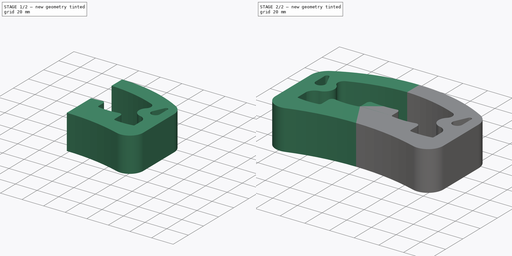
[diagram: build sequence overview — one tinted view per stage of 2, left to right]
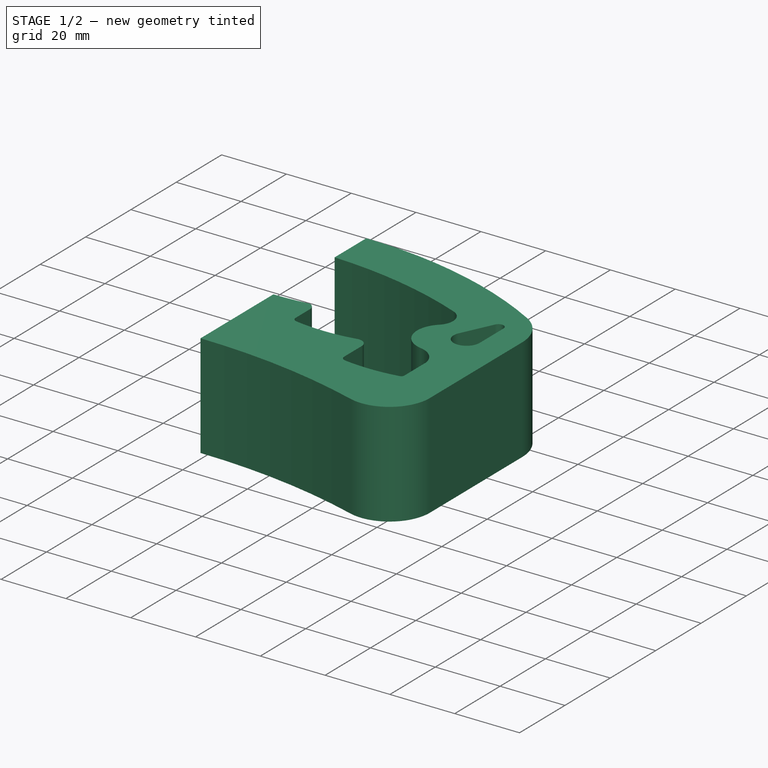
[diagram: stage 1 of 2 — iso view after this stage's code; geometry added in this stage tinted green]
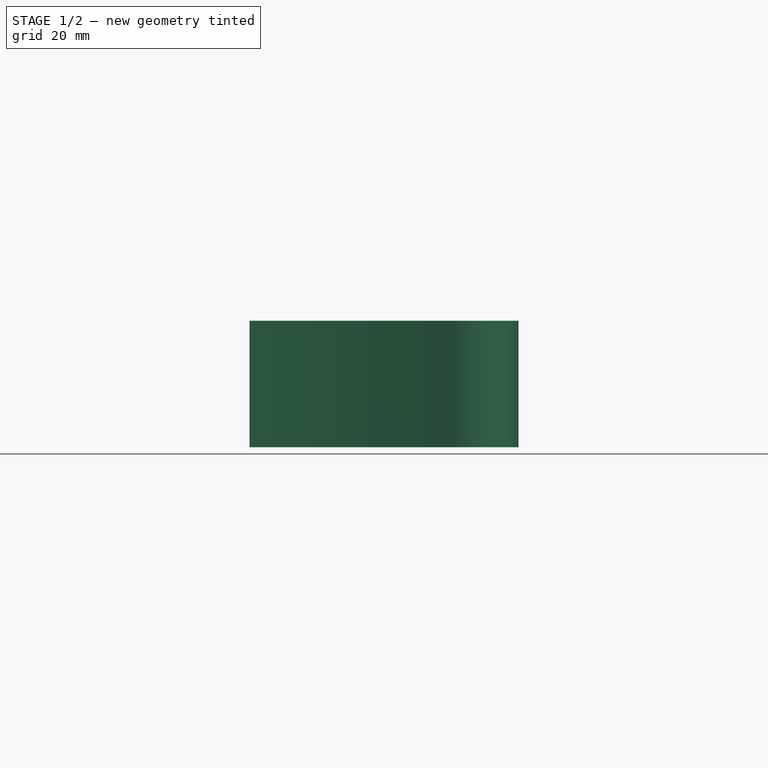
[diagram: stage 1 of 2 — front view after this stage's code; geometry added in this stage tinted green]
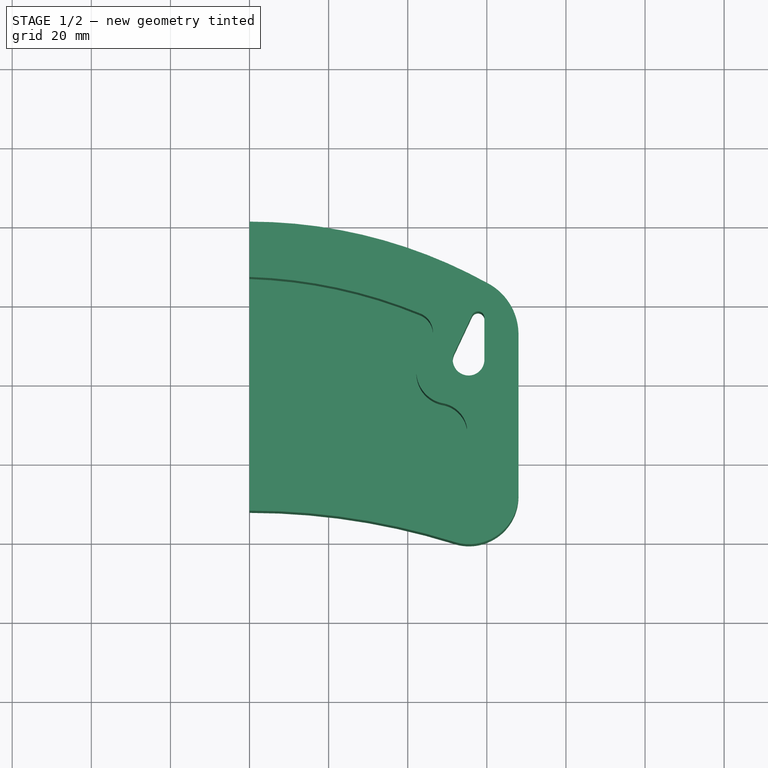
[diagram: stage 1 of 2 — top view after this stage's code; geometry added in this stage tinted green]
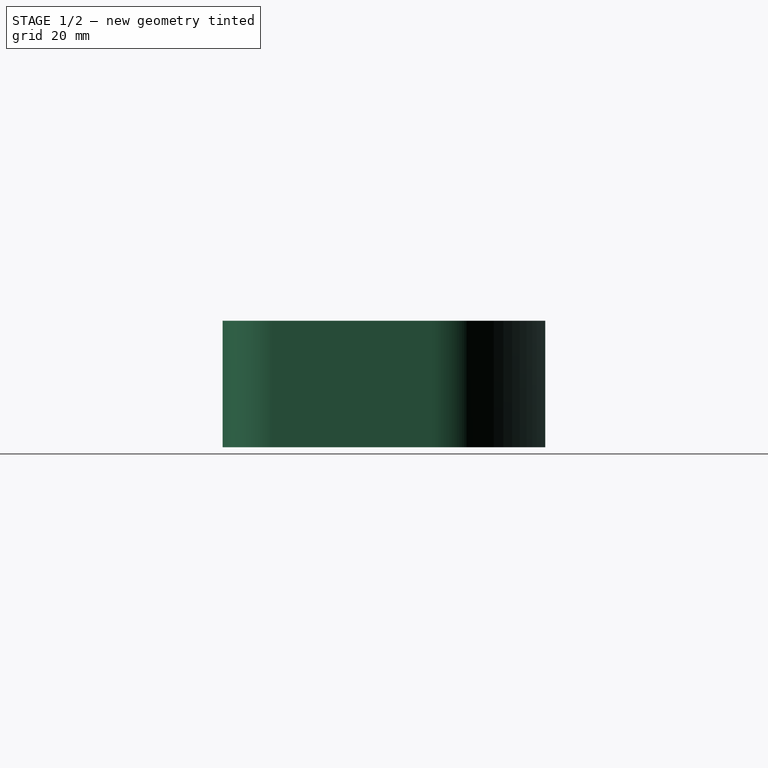
[diagram: stage 1 of 2 — right view after this stage's code; geometry added in this stage tinted green]
FCSTD DOCUMENT  (FreeCAD 1.0RUnknown)
Label: metacarpedge_v2
License: All rights reserved
LicenseURL: https://en.wikipedia.org/wiki/All_rights_reserved
objects: Sketcher::SketchObject×2, PartDesign::Pad×1, PartDesign::Pocket×1, PartDesign::Mirrored×1, PartDesign::Body×1
note: 13 computed .brp shape members not serialized (recipe doc carries the construction recipe); baked Part::Feature solids carry a one-line shape summary decoded from their .brp

FEATURE [Sketcher::SketchObject] Sketch
  ArcFitTolerance = 1e-06
  AttachmentSupport = -> [XY_Plane]
  FullyConstrained = false
  MakeInternals = false
  MapMode = 5
  sketch-geometry (12):
    g0: LineSegment StartX=68 StartY=11.9198 StartZ=0 EndX=68 EndY=52.4848 EndZ=0
    g1: ArcOfCircle CenterX=2.13e-14 CenterY=-165.714 CenterZ=0 NormalX=0 NormalY=0 NormalZ=1 AngleXU=0 Radius=173.617 StartAngle=1.26791 EndAngle=1.5708
    g2: ArcOfCircle CenterX=0 CenterY=-43.203 CenterZ=0 NormalX=0 NormalY=0 NormalZ=1 AngleXU=0 Radius=124.203 StartAngle=1.06214 EndAngle=1.5708
    g3: ArcOfCircle CenterX=55.5117 CenterY=11.9198 CenterZ=0 NormalX=0 NormalY=0 NormalZ=1 AngleXU=0 Radius=12.4883 StartAngle=4.4095 EndAngle=6.28319
    g4: ArcOfCircle CenterX=53.3545 CenterY=52.4848 CenterZ=0 NormalX=0 NormalY=0 NormalZ=1 AngleXU=0 Radius=14.6455 StartAngle=0 EndAngle=1.06214
    g5: LineSegment StartX=56.2781 StartY=57.3751 StartZ=0 EndX=51.7626 EndY=47.7982 EndZ=0
    g6: LineSegment StartX=59.3877 StartY=56.6788 StartZ=0 EndX=59.3877 EndY=46.0908 EndZ=0
    g7: ArcOfCircle CenterX=55.384 CenterY=46.0908 CenterZ=0 NormalX=0 NormalY=0 NormalZ=1 AngleXU=0 Radius=4.00371 StartAngle=2.701 EndAngle=6.28319
    g8: ArcOfCircle CenterX=57.7549 CenterY=56.6788 CenterZ=0 NormalX=0 NormalY=0 NormalZ=1 AngleXU=0 Radius=1.63275 StartAngle=-1.8e-15 EndAngle=2.701
    g9: LineSegment [constr] StartX=8.64254 StartY=81 StartZ=0 EndX=-10.5317 EndY=81 EndZ=0
    g10: LineSegment [constr] StartX=-3.87588 StartY=7.90337 StartZ=0 EndX=5.636 EndY=7.90337 EndZ=0
    g11: LineSegment StartX=7.6e-15 StartY=81 StartZ=0 EndX=7.6e-15 EndY=7.90337 EndZ=0
  constraints (21):
    c: Vertical(g0)
    c: PointOnObject(g1,g-1)
    c: PointOnObject(g1,g-2)
    c: Tangent(g4,g2) = -1.5708
    c: Tangent(g4,g0) = -1.5708
    c: Tangent(g3,g0) = -1.5708
    c: Tangent(g3,g1) = 1.5708
    c: Vertical(g6)
    c: Tangent(g8,g5) = -1.5708
    c: Tangent(g7,g5) = -1.5708
    c: Tangent(g7,g6) = 1.5708
    c: Tangent(g8,g6) = 1.5708
    c: Distance(g-2,g0) = 68
    c: DistanceY(g-1,g2) = 81
    c: Horizontal(g9)
    c: Tangent(g2,g9) = -1.5708
    c: Horizontal(g10)
    c: Tangent(g1,g10) = 1.5708
    c: Coincident(g11,g2)
    c: Coincident(g11,g1)
    c: Vertical(g11)
FEATURE [PartDesign::Pad] Pad
  Direction = (0,0,1)
  Length = 32
  Length2 = 10
  Profile = -> Sketch
  ReferenceAxis = -> Sketch [N_Axis]
  Suppressed = false
  Type = 0
FEATURE [Sketcher::SketchObject] Sketch001
  ArcFitTolerance = 1e-06
  AttachmentOffset = pos=(0,0,32) rot=(0,0,1;0rad)
  AttachmentSupport = -> [XY_Plane]
  ExternalGeometry = -> [Sketch]
  FullyConstrained = false
  MakeInternals = false
  MapMode = 5
  Placement = pos=(0,0,32) rot=(0,0,1;0rad)
  expr: .AttachmentOffset.Base.z = Pad.Length
  sketch-geometry (18):
    g0: ArcOfCircle CenterX=-3.96986 CenterY=-57.1396 CenterZ=0 NormalX=0 NormalY=0 NormalZ=1 AngleXU=0 Radius=124.203 StartAngle=1.18156 EndAngle=1.53883
    g1: LineSegment [constr] StartX=-8.37039 StartY=67.0635 StartZ=0 EndX=9.31481 EndY=67.0635 EndZ=0
    g2: ArcOfCircle CenterX=22.8152 CenterY=80.8834 CenterZ=0 NormalX=0 NormalY=0 NormalZ=1 AngleXU=0 Radius=51.5226 StartAngle=4.54279 EndAngle=4.91138
    g3: ArcOfCircle CenterX=45.0899 CenterY=69.7222 CenterZ=0 NormalX=0 NormalY=0 NormalZ=1 AngleXU=0 Radius=52.2566 StartAngle=4.56925 EndAngle=4.88876
    g4: ArcOfCircle CenterX=0 CenterY=118.096 CenterZ=0 NormalX=0 NormalY=0 NormalZ=1 AngleXU=0 Radius=78.0962 StartAngle=4.71239 EndAngle=4.84983
    g5: LineSegment StartX=12.6669 StartY=31.822 StartZ=0 EndX=12.6669 EndY=37.9697 EndZ=0
    g6: ArcOfCircle CenterX=9.73758 CenterY=37.9697 CenterZ=0 NormalX=0 NormalY=0 NormalZ=1 AngleXU=0 Radius=2.92934 StartAngle=-9e-16 EndAngle=1.23603
    g7: LineSegment StartX=36.0475 StartY=19.8334 StartZ=0 EndX=36.0475 EndY=27.4505 EndZ=0
    g8: ArcOfCircle CenterX=33.1182 CenterY=27.4505 CenterZ=0 NormalX=0 NormalY=0 NormalZ=1 AngleXU=0 Radius=2.92934 StartAngle=0 EndAngle=1.61116
    g9: LineSegment [constr] StartX=-4.82226 StartY=40 StartZ=0 EndX=3.66042 EndY=40 EndZ=0
    g10: ArcOfCircle CenterX=50.4089 CenterY=43.1664 CenterZ=0 NormalX=0 NormalY=0 NormalZ=1 AngleXU=0 Radius=8.2383 StartAngle=2.32657 EndAngle=4.52888
    g11: ArcOfCircle CenterX=41.1856 CenterY=52.9531 CenterZ=0 NormalX=0 NormalY=0 NormalZ=1 AngleXU=0 Radius=5.20974 StartAngle=5.46816 EndAngle=7.46475
    g12: ArcOfCircle CenterX=47.5222 CenterY=27.6124 CenterZ=0 NormalX=0 NormalY=0 NormalZ=1 AngleXU=0 Radius=7.58128 StartAngle=0.166833 EndAngle=1.38729
    g13: LineSegment StartX=54.9982 StartY=28.8713 StartZ=0 EndX=54.9982 EndY=19.159 EndZ=0
    g14: LineSegment StartX=2.2e-15 StartY=67 StartZ=0 EndX=-1.43e-14 EndY=40 EndZ=0
    g15: ArcOfCircle CenterX=54.1016 CenterY=19.159 CenterZ=0 NormalX=0 NormalY=0 NormalZ=1 AngleXU=0 Radius=0.896596 StartAngle=4.88876 EndAngle=6.28319
    g16: ArcOfCircle CenterX=14.414 CenterY=31.822 CenterZ=0 NormalX=0 NormalY=0 NormalZ=1 AngleXU=0 Radius=1.74707 StartAngle=3.14159 EndAngle=4.54279
    g17: ArcOfCircle CenterX=37.8999 CenterY=19.8334 CenterZ=0 NormalX=0 NormalY=0 NormalZ=1 AngleXU=0 Radius=1.8523 StartAngle=3.14159 EndAngle=4.56925
  constraints (33):
    c: PointOnObject(g0,g-2)
    c: Equal(g0,g-3)
    c: Horizontal(g1)
    c: Tangent(g1,g0)
    c: PointOnObject(g4,g-2)
    c: Distance(g4,g-2) = 10.7
    c: Vertical(g5)
    c: Coincident(g4,g6)
    c: Tangent(g6,g5) = -1.5708
    c: Distance(g2,g-2) = 33
    c: Vertical(g7)
    c: Coincident(g8,g2)
    c: Equal(g8,g6)
    c: Horizontal(g9)
    c: Distance(g4,g-1) = 40
    c: Tangent(g4,g9) = -1.5708
    c: DistanceY(g0,g-3) = 14
    c: Tangent(g10,g11) = 1.5708
    c: Tangent(g0,g11) = -1.5708
    c: Tangent(g12,g10) = 1.5708
    c: Coincident(g13,g12)
    c: Vertical(g13)
    c: Coincident(g14,g0)
    c: Coincident(g14,g4)
    c: Tangent(g13,g15) = 1.5708
    c: Tangent(g3,g15) = -1.5708
    c: Tangent(g5,g16) = 1.5708
    c: Tangent(g2,g16) = -1.5708
    c: Tangent(g7,g17) = 1.5708
    c: Tangent(g3,g17) = -1.5708
    c: Tangent(g8,g7) = -1.5708
    c: Distance(g2,g-1) = 30.1
    c: Distance(g3,g-1) = 18
FEATURE [PartDesign::Pocket] Pocket
  BaseFeature = -> Pad
  Direction = (0,0,-1)
  Length = 30
  Length2 = 5
  Profile = -> Sketch001
  ReferenceAxis = -> Sketch001 [N_Axis]
  Suppressed = false
  Type = 0
  expr: Length = 30 mm
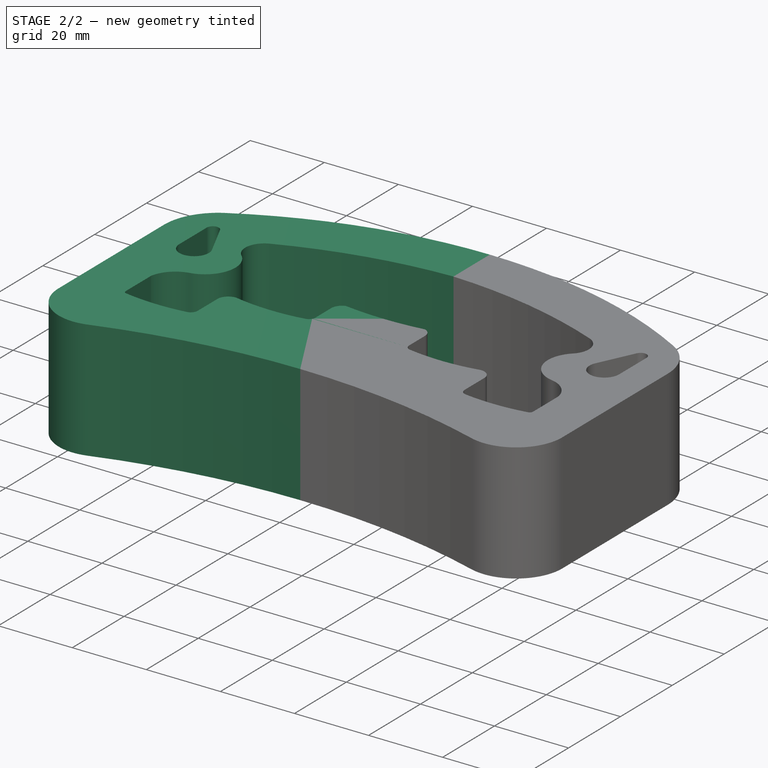
[diagram: stage 2 of 2 — iso view after this stage's code; geometry added in this stage tinted green]
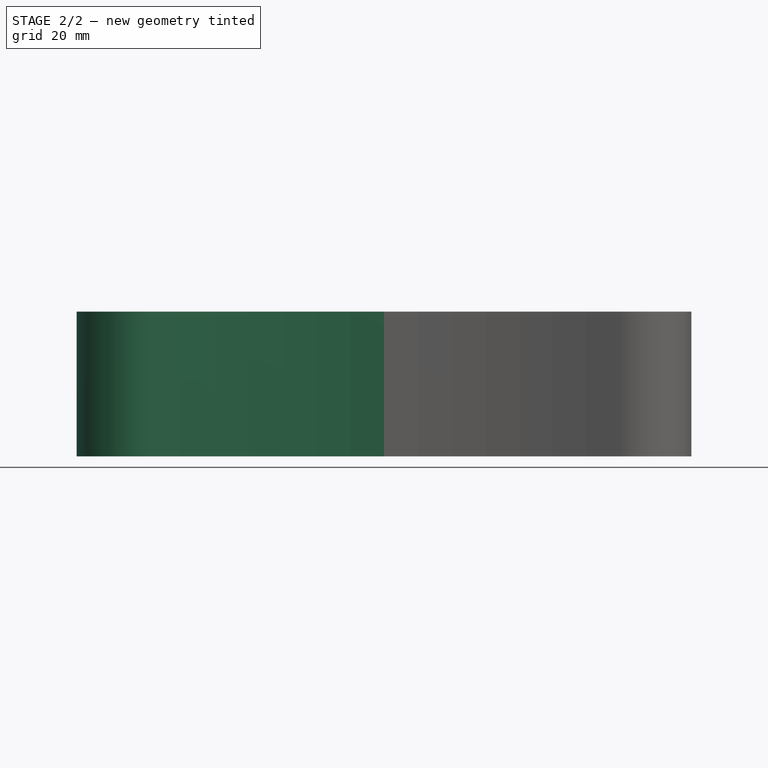
[diagram: stage 2 of 2 — front view after this stage's code; geometry added in this stage tinted green]
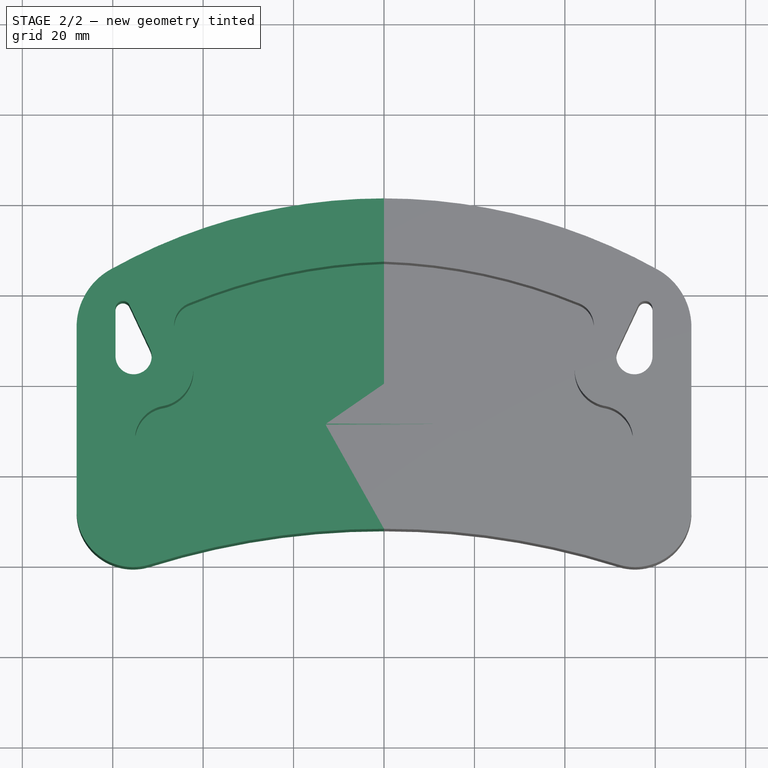
[diagram: stage 2 of 2 — top view after this stage's code; geometry added in this stage tinted green]
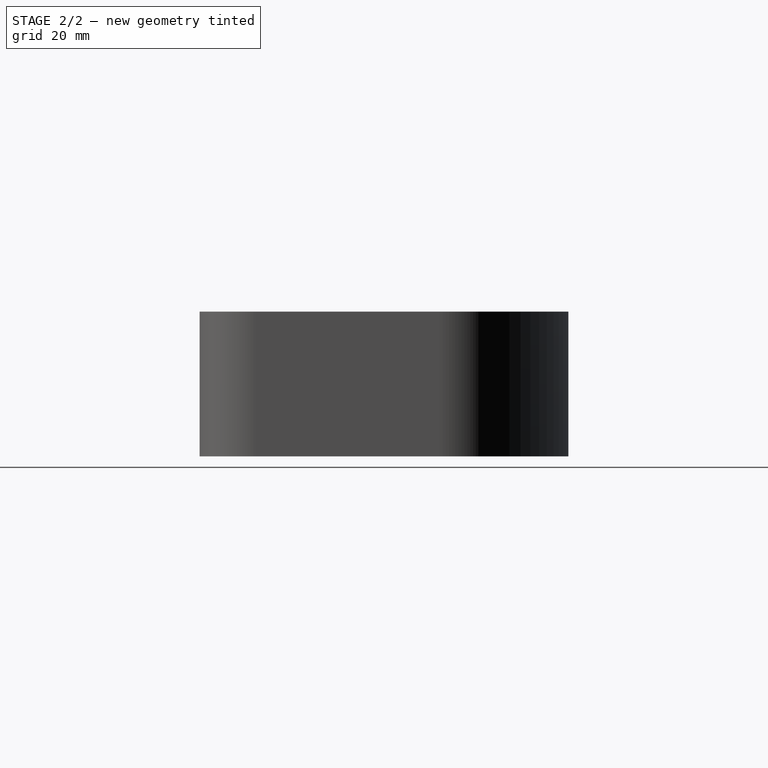
[diagram: stage 2 of 2 — right view after this stage's code; geometry added in this stage tinted green]
FEATURE [PartDesign::Mirrored] Mirrored
  BaseFeature = -> Pocket
  MirrorPlane = -> Sketch001 [V_Axis]
  Originals = -> [Pad,Pocket]
  Refine = true
  Suppressed = false
  TransformMode = 0
FEATURE [PartDesign::Body] Body
  AllowCompound = false
  Group = -> [Sketch,Pad,Sketch001,Pocket,Mirrored]
  Origin = -> Origin
  Tip = -> Mirrored
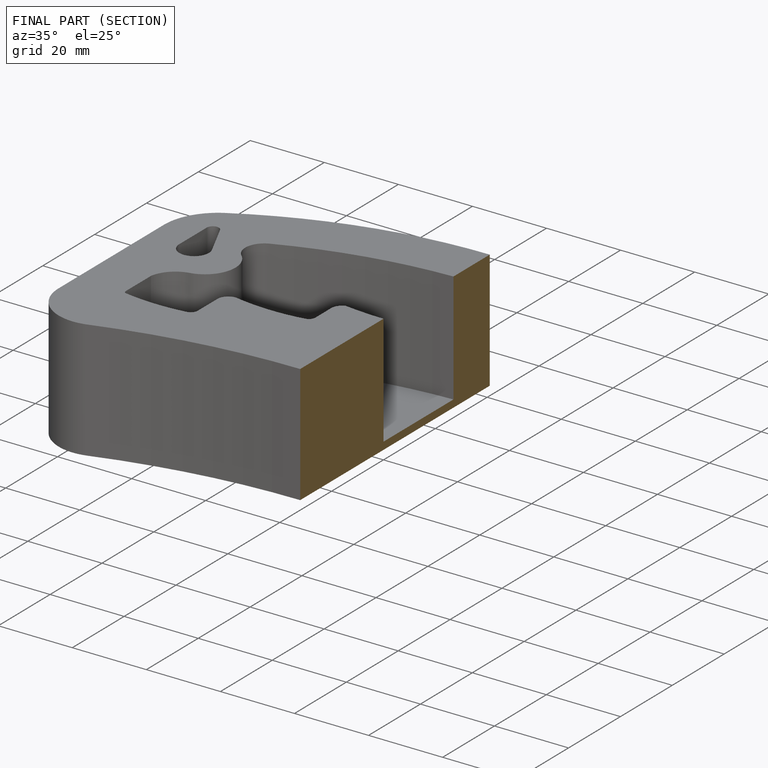
[diagram: finished part — half-section view (interior)]
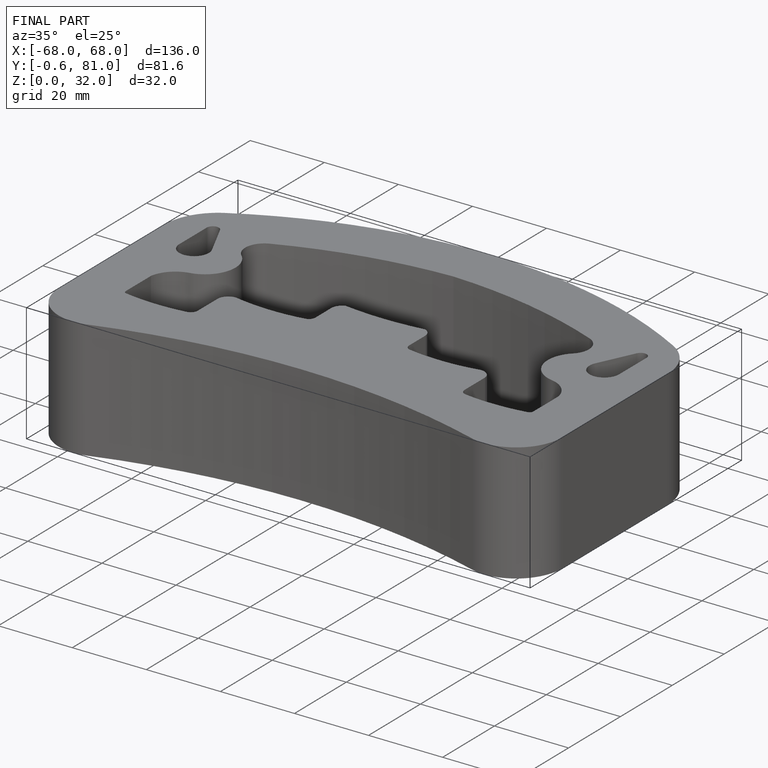
[diagram: finished part — iso view with bounding-box wireframe]
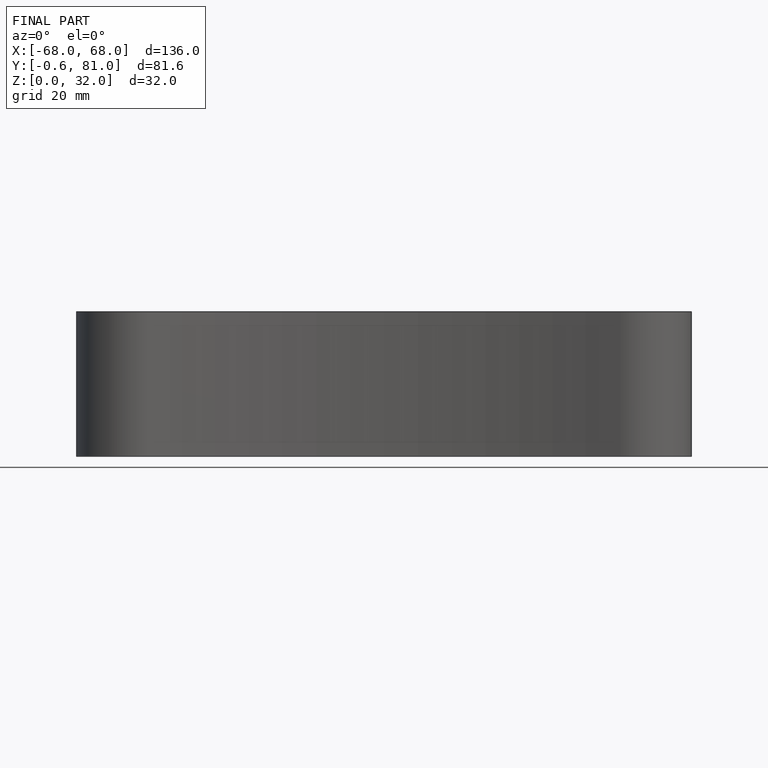
[diagram: finished part — front view with bounding-box wireframe]
